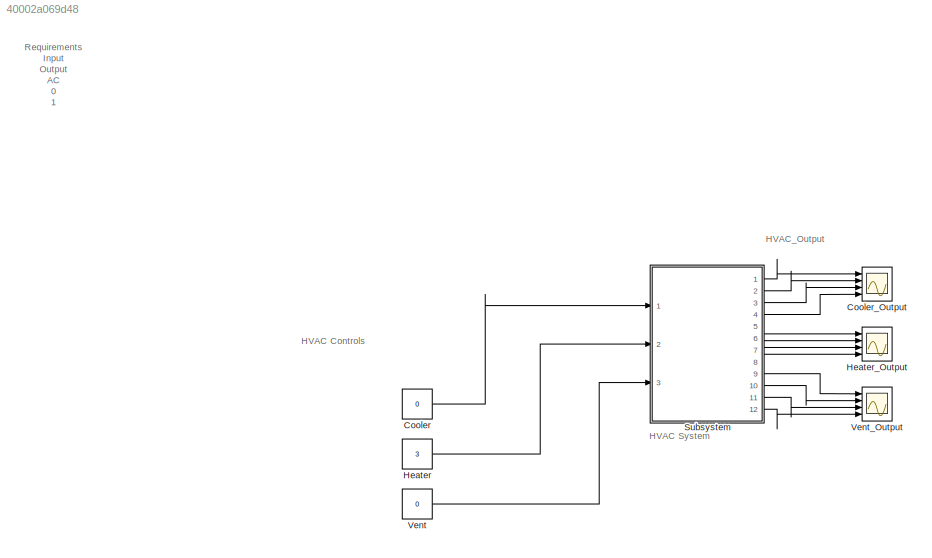
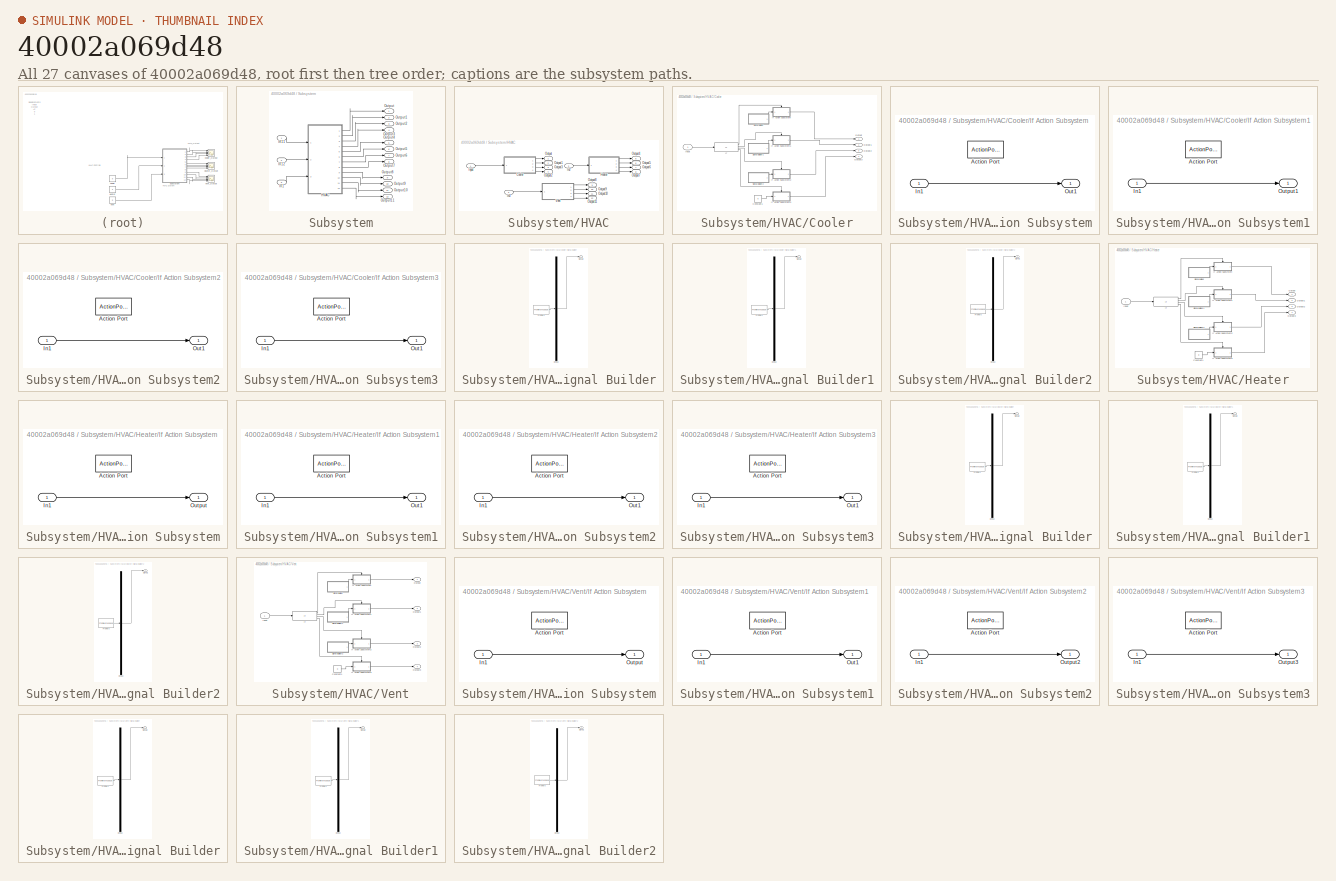
[diagram: thumbnail index - all 27 canvases of the model, root first then tree order]
MODEL slx_40002a069d48
KIND model
CONFIG AbsTol = auto
CONFIG EnableMultiTasking = off
CONFIG FixedStep = auto
CONFIG MaxStep = auto
CONFIG MinStep = auto
CONFIG RelTol = 1e-3
CONFIG SampleTimeConstraint = Unconstrained
CONFIG Solver = VariableStepAuto
CONFIG SolverName = VariableStepAuto
CONFIG StartTime = 0.0
CONFIG StopTime = 10.0
BLOCK [Constant] Cooler
  Value = 0
BLOCK [Scope] Cooler_Output
  Floating = off
  NumInputPorts = 4
  Ports = [4]
  ScopeSpecificationString = Simulink.scopes.TimeScopeBlockCfg('CurrentConfiguration', extmgr.ConfigurationSet(extmgr.Configuration('Core','General UI',true),extmgr.Configuration('Core','Source UI',true),extmgr.Configuration('Sources','WiredSimulink',true,'DataLoggingVariableName','ScopeData1'),extmgr.Configuration('Visuals','Time Domain',true,'SerializedDisplays',{struct('MinYLimReal','-1.00000','MaxYLimReal','1.00000','YLab...<+1412ch>
BLOCK [Constant] Heater
  Value = 3
BLOCK [Scope] Heater_Output
  Floating = off
  NumInputPorts = 4
  Ports = [4]
  ScopeSpecificationString = Simulink.scopes.TimeScopeBlockCfg('CurrentConfiguration', extmgr.ConfigurationSet(extmgr.Configuration('Core','General UI',true),extmgr.Configuration('Core','Source UI',true),extmgr.Configuration('Sources','WiredSimulink',true,'DataLoggingVariableName','ScopeData2'),extmgr.Configuration('Visuals','Time Domain',true,'SerializedDisplays',{struct('MinYLimReal','-0.25','MaxYLimReal','2.25','YLabelReal...<+1394ch>
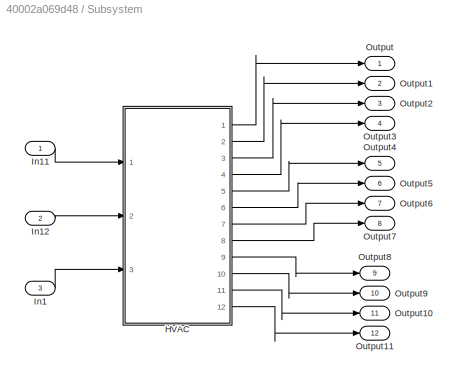
BLOCK [SubSystem] Subsystem
  Ports = [3, 12]
  RequestExecContextInheritance = off
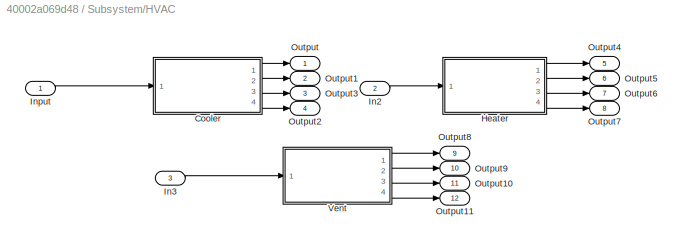
BLOCK [SubSystem] Subsystem/HVAC
  Ports = [3, 12]
  RequestExecContextInheritance = off
BLOCK [SubSystem] Subsystem/HVAC/Cooler
  Ports = [1, 4]
  RequestExecContextInheritance = off
BLOCK [Constant] Subsystem/HVAC/Cooler/Constant1
  Value = 0
BLOCK [If] Subsystem/HVAC/Cooler/If
  ElseIfExpressions = u1 == 2, u1 == 3
  IfExpression = u1 == 1
  Ports = [1, 4]
BLOCK [SubSystem] Subsystem/HVAC/Cooler/If Action Subsystem
  Ports = [1, 1, 0, 0, 0, 0, 0, 1]
  RequestExecContextInheritance = off
  TreatAsAtomicUnit = on
BLOCK [ActionPort] Subsystem/HVAC/Cooler/If Action Subsystem/Action Port
BLOCK [Inport] Subsystem/HVAC/Cooler/If Action Subsystem/In1
BLOCK [Outport] Subsystem/HVAC/Cooler/If Action Subsystem/Out1
BLOCK [SubSystem] Subsystem/HVAC/Cooler/If Action Subsystem1
  Ports = [1, 1, 0, 0, 0, 0, 0, 1]
  RequestExecContextInheritance = off
  TreatAsAtomicUnit = on
BLOCK [ActionPort] Subsystem/HVAC/Cooler/If Action Subsystem1/Action Port
BLOCK [Inport] Subsystem/HVAC/Cooler/If Action Subsystem1/In1
BLOCK [Outport] Subsystem/HVAC/Cooler/If Action Subsystem1/Output1
BLOCK [SubSystem] Subsystem/HVAC/Cooler/If Action Subsystem2
  Ports = [1, 1, 0, 0, 0, 0, 0, 1]
  RequestExecContextInheritance = off
  TreatAsAtomicUnit = on
BLOCK [ActionPort] Subsystem/HVAC/Cooler/If Action Subsystem2/Action Port
BLOCK [Inport] Subsystem/HVAC/Cooler/If Action Subsystem2/In1
BLOCK [Outport] Subsystem/HVAC/Cooler/If Action Subsystem2/Out1
BLOCK [SubSystem] Subsystem/HVAC/Cooler/If Action Subsystem3
  Ports = [1, 1, 0, 0, 0, 0, 0, 1]
  RequestExecContextInheritance = off
  TreatAsAtomicUnit = on
BLOCK [ActionPort] Subsystem/HVAC/Cooler/If Action Subsystem3/Action Port
BLOCK [Inport] Subsystem/HVAC/Cooler/If Action Subsystem3/In1
BLOCK [Outport] Subsystem/HVAC/Cooler/If Action Subsystem3/Out1
BLOCK [Inport] Subsystem/HVAC/Cooler/Input
BLOCK [Outport] Subsystem/HVAC/Cooler/Output
BLOCK [Outport] Subsystem/HVAC/Cooler/Output1
  Port = 2
BLOCK [Outport] Subsystem/HVAC/Cooler/Output2
  Port = 3
BLOCK [Outport] Subsystem/HVAC/Cooler/Output3
  Port = 4
BLOCK [SubSystem] Subsystem/HVAC/Cooler/Signal Builder
  ClipboardFcn = sigbuilder_block('clipboard');
  CloseFcn = sigbuilder_block('close');
  ContinueFcn = sigbuilder_block('continue');
  CopyFcn = sigbuilder_block('copy');
  DeleteFcn = sigbuilder_block('delete');
  LoadFcn = sigbuilder_block('load',[437.6 153 550.4 359.25 ]);
  MaskHideContents = on
  ModelCloseFcn = sigbuilder_block('modelClose');
  NameChangeFcn = sigbuilder_block('namechange');
  OpenFcn = sigbuilder_block('open',[437.6 153 550.4 359.25 ]);
  PauseFcn = sigbuilder_block('pause');
  Ports = [0, 1]
  PreSaveFcn = sigbuilder_block('preSave');
  RequestExecContextInheritance = off
  StartFcn = sigbuilder_block('start');
  StopFcn = sigbuilder_block('stop');
  Tag = STV Subsys
BLOCK [Demux] Subsystem/HVAC/Cooler/Signal Builder/Demux
  DisplayOption = none
  Outputs = 1
  Ports = [1, 1]
  Tag = STV Demux
BLOCK [FromWorkspace] Subsystem/HVAC/Cooler/Signal Builder/FromWs
  Tag = STV FromWs
  VariableName = tuvar
BLOCK [Outport] Subsystem/HVAC/Cooler/Signal Builder/Signal 2
  Tag = STV Outport
BLOCK [SubSystem] Subsystem/HVAC/Cooler/Signal Builder1
  ClipboardFcn = sigbuilder_block('clipboard');
  CloseFcn = sigbuilder_block('close');
  ContinueFcn = sigbuilder_block('continue');
  CopyFcn = sigbuilder_block('copy');
  DeleteFcn = sigbuilder_block('delete');
  LoadFcn = sigbuilder_block('load');
  MaskHideContents = on
  ModelCloseFcn = sigbuilder_block('modelClose');
  NameChangeFcn = sigbuilder_block('namechange');
  OpenFcn = sigbuilder_block('open',[437.6 153 550.4 359.25 ]);
  PauseFcn = sigbuilder_block('pause');
  Ports = [0, 1]
  PreSaveFcn = sigbuilder_block('preSave');
  RequestExecContextInheritance = off
  StartFcn = sigbuilder_block('start');
  StopFcn = sigbuilder_block('stop');
  Tag = STV Subsys
BLOCK [Demux] Subsystem/HVAC/Cooler/Signal Builder1/Demux
  DisplayOption = none
  Outputs = 1
  Ports = [1, 1]
  Tag = STV Demux
BLOCK [FromWorkspace] Subsystem/HVAC/Cooler/Signal Builder1/FromWs
  Tag = STV FromWs
  VariableName = tuvar
BLOCK [Outport] Subsystem/HVAC/Cooler/Signal Builder1/Signal 2
  Tag = STV Outport
BLOCK [SubSystem] Subsystem/HVAC/Cooler/Signal Builder2
  ClipboardFcn = sigbuilder_block('clipboard');
  CloseFcn = sigbuilder_block('close');
  ContinueFcn = sigbuilder_block('continue');
  CopyFcn = sigbuilder_block('copy');
  DeleteFcn = sigbuilder_block('delete');
  LoadFcn = sigbuilder_block('load');
  MaskHideContents = on
  ModelCloseFcn = sigbuilder_block('modelClose');
  NameChangeFcn = sigbuilder_block('namechange');
  OpenFcn = sigbuilder_block('open',[437.6 153 550.4 359.25 ]);
  PauseFcn = sigbuilder_block('pause');
  Ports = [0, 1]
  PreSaveFcn = sigbuilder_block('preSave');
  RequestExecContextInheritance = off
  StartFcn = sigbuilder_block('start');
  StopFcn = sigbuilder_block('stop');
  Tag = STV Subsys
BLOCK [Demux] Subsystem/HVAC/Cooler/Signal Builder2/Demux
  DisplayOption = none
  Outputs = 1
  Ports = [1, 1]
  Tag = STV Demux
BLOCK [FromWorkspace] Subsystem/HVAC/Cooler/Signal Builder2/FromWs
  Tag = STV FromWs
  VariableName = tuvar
BLOCK [Outport] Subsystem/HVAC/Cooler/Signal Builder2/Signal 1
  Tag = STV Outport
BLOCK [SubSystem] Subsystem/HVAC/Heater
  Ports = [1, 4]
  RequestExecContextInheritance = off
BLOCK [Constant] Subsystem/HVAC/Heater/Constant1
  Value = 0
BLOCK [If] Subsystem/HVAC/Heater/If
  ElseIfExpressions = u1 == 2, u1 == 3
  IfExpression = u1 == 1
  Ports = [1, 4]
BLOCK [SubSystem] Subsystem/HVAC/Heater/If Action Subsystem
  Ports = [1, 1, 0, 0, 0, 0, 0, 1]
  RequestExecContextInheritance = off
  TreatAsAtomicUnit = on
BLOCK [ActionPort] Subsystem/HVAC/Heater/If Action Subsystem/Action Port
BLOCK [Inport] Subsystem/HVAC/Heater/If Action Subsystem/In1
BLOCK [Outport] Subsystem/HVAC/Heater/If Action Subsystem/Output
BLOCK [SubSystem] Subsystem/HVAC/Heater/If Action Subsystem1
  Ports = [1, 1, 0, 0, 0, 0, 0, 1]
  RequestExecContextInheritance = off
  TreatAsAtomicUnit = on
BLOCK [ActionPort] Subsystem/HVAC/Heater/If Action Subsystem1/Action Port
BLOCK [Inport] Subsystem/HVAC/Heater/If Action Subsystem1/In1
BLOCK [Outport] Subsystem/HVAC/Heater/If Action Subsystem1/Out1
BLOCK [SubSystem] Subsystem/HVAC/Heater/If Action Subsystem2
  Ports = [1, 1, 0, 0, 0, 0, 0, 1]
  RequestExecContextInheritance = off
  TreatAsAtomicUnit = on
BLOCK [ActionPort] Subsystem/HVAC/Heater/If Action Subsystem2/Action Port
BLOCK [Inport] Subsystem/HVAC/Heater/If Action Subsystem2/In1
BLOCK [Outport] Subsystem/HVAC/Heater/If Action Subsystem2/Out1
BLOCK [SubSystem] Subsystem/HVAC/Heater/If Action Subsystem3
  Ports = [1, 1, 0, 0, 0, 0, 0, 1]
  RequestExecContextInheritance = off
  TreatAsAtomicUnit = on
BLOCK [ActionPort] Subsystem/HVAC/Heater/If Action Subsystem3/Action Port
BLOCK [Inport] Subsystem/HVAC/Heater/If Action Subsystem3/In1
BLOCK [Outport] Subsystem/HVAC/Heater/If Action Subsystem3/Out1
BLOCK [Inport] Subsystem/HVAC/Heater/Input
BLOCK [Outport] Subsystem/HVAC/Heater/Output
BLOCK [Outport] Subsystem/HVAC/Heater/Output1
  Port = 2
BLOCK [Outport] Subsystem/HVAC/Heater/Output2
  Port = 3
BLOCK [Outport] Subsystem/HVAC/Heater/Output3
  Port = 4
BLOCK [SubSystem] Subsystem/HVAC/Heater/Signal Builder
  ClipboardFcn = sigbuilder_block('clipboard');
  CloseFcn = sigbuilder_block('close');
  ContinueFcn = sigbuilder_block('continue');
  CopyFcn = sigbuilder_block('copy');
  DeleteFcn = sigbuilder_block('delete');
  LoadFcn = sigbuilder_block('load');
  MaskHideContents = on
  ModelCloseFcn = sigbuilder_block('modelClose');
  NameChangeFcn = sigbuilder_block('namechange');
  OpenFcn = sigbuilder_block('open',[437.6 153 550.4 359.25 ]);
  PauseFcn = sigbuilder_block('pause');
  Ports = [0, 1]
  PreSaveFcn = sigbuilder_block('preSave');
  RequestExecContextInheritance = off
  StartFcn = sigbuilder_block('start');
  StopFcn = sigbuilder_block('stop');
  Tag = STV Subsys
BLOCK [Demux] Subsystem/HVAC/Heater/Signal Builder/Demux
  DisplayOption = none
  Outputs = 1
  Ports = [1, 1]
  Tag = STV Demux
BLOCK [FromWorkspace] Subsystem/HVAC/Heater/Signal Builder/FromWs
  Tag = STV FromWs
  VariableName = tuvar
BLOCK [Outport] Subsystem/HVAC/Heater/Signal Builder/Signal 2
  Tag = STV Outport
BLOCK [SubSystem] Subsystem/HVAC/Heater/Signal Builder1
  ClipboardFcn = sigbuilder_block('clipboard');
  CloseFcn = sigbuilder_block('close');
  ContinueFcn = sigbuilder_block('continue');
  CopyFcn = sigbuilder_block('copy');
  DeleteFcn = sigbuilder_block('delete');
  LoadFcn = sigbuilder_block('load');
  MaskHideContents = on
  ModelCloseFcn = sigbuilder_block('modelClose');
  NameChangeFcn = sigbuilder_block('namechange');
  OpenFcn = sigbuilder_block('open',[437.6 153 550.4 359.25 ]);
  PauseFcn = sigbuilder_block('pause');
  Ports = [0, 1]
  PreSaveFcn = sigbuilder_block('preSave');
  RequestExecContextInheritance = off
  StartFcn = sigbuilder_block('start');
  StopFcn = sigbuilder_block('stop');
  Tag = STV Subsys
BLOCK [Demux] Subsystem/HVAC/Heater/Signal Builder1/Demux
  DisplayOption = none
  Outputs = 1
  Ports = [1, 1]
  Tag = STV Demux
BLOCK [FromWorkspace] Subsystem/HVAC/Heater/Signal Builder1/FromWs
  Tag = STV FromWs
  VariableName = tuvar
BLOCK [Outport] Subsystem/HVAC/Heater/Signal Builder1/Signal 2
  Tag = STV Outport
BLOCK [SubSystem] Subsystem/HVAC/Heater/Signal Builder2
  ClipboardFcn = sigbuilder_block('clipboard');
  CloseFcn = sigbuilder_block('close');
  ContinueFcn = sigbuilder_block('continue');
  CopyFcn = sigbuilder_block('copy');
  DeleteFcn = sigbuilder_block('delete');
  LoadFcn = sigbuilder_block('load');
  MaskHideContents = on
  ModelCloseFcn = sigbuilder_block('modelClose');
  NameChangeFcn = sigbuilder_block('namechange');
  OpenFcn = sigbuilder_block('open',[437.6 153 550.4 359.25 ]);
  PauseFcn = sigbuilder_block('pause');
  Ports = [0, 1]
  PreSaveFcn = sigbuilder_block('preSave');
  RequestExecContextInheritance = off
  StartFcn = sigbuilder_block('start');
  StopFcn = sigbuilder_block('stop');
  Tag = STV Subsys
BLOCK [Demux] Subsystem/HVAC/Heater/Signal Builder2/Demux
  DisplayOption = none
  Outputs = 1
  Ports = [1, 1]
  Tag = STV Demux
BLOCK [FromWorkspace] Subsystem/HVAC/Heater/Signal Builder2/FromWs
  Tag = STV FromWs
  VariableName = tuvar
BLOCK [Outport] Subsystem/HVAC/Heater/Signal Builder2/Signal 1
  Tag = STV Outport
BLOCK [Inport] Subsystem/HVAC/In2
  Port = 2
BLOCK [Inport] Subsystem/HVAC/In3
  Port = 3
BLOCK [Inport] Subsystem/HVAC/Input
BLOCK [Outport] Subsystem/HVAC/Output
BLOCK [Outport] Subsystem/HVAC/Output1
  Port = 2
BLOCK [Outport] Subsystem/HVAC/Output10
  Port = 11
BLOCK [Outport] Subsystem/HVAC/Output11
  Port = 12
BLOCK [Outport] Subsystem/HVAC/Output2
  Port = 4
BLOCK [Outport] Subsystem/HVAC/Output3
  Port = 3
BLOCK [Outport] Subsystem/HVAC/Output4
  Port = 5
BLOCK [Outport] Subsystem/HVAC/Output5
  Port = 6
BLOCK [Outport] Subsystem/HVAC/Output6
  Port = 7
BLOCK [Outport] Subsystem/HVAC/Output7
  Port = 8
BLOCK [Outport] Subsystem/HVAC/Output8
  Port = 9
BLOCK [Outport] Subsystem/HVAC/Output9
  Port = 10
BLOCK [SubSystem] Subsystem/HVAC/Vent
  Ports = [1, 4]
  RequestExecContextInheritance = off
BLOCK [Constant] Subsystem/HVAC/Vent/Constant1
  Value = 0
BLOCK [If] Subsystem/HVAC/Vent/If
  ElseIfExpressions = u1 == 2, u1 == 3
  IfExpression = u1 == 1
  Ports = [1, 4]
BLOCK [SubSystem] Subsystem/HVAC/Vent/If Action Subsystem
  Ports = [1, 1, 0, 0, 0, 0, 0, 1]
  RequestExecContextInheritance = off
  TreatAsAtomicUnit = on
BLOCK [ActionPort] Subsystem/HVAC/Vent/If Action Subsystem/Action Port
BLOCK [Inport] Subsystem/HVAC/Vent/If Action Subsystem/In1
BLOCK [Outport] Subsystem/HVAC/Vent/If Action Subsystem/Output
BLOCK [SubSystem] Subsystem/HVAC/Vent/If Action Subsystem1
  Ports = [1, 1, 0, 0, 0, 0, 0, 1]
  RequestExecContextInheritance = off
  TreatAsAtomicUnit = on
BLOCK [ActionPort] Subsystem/HVAC/Vent/If Action Subsystem1/Action Port
BLOCK [Inport] Subsystem/HVAC/Vent/If Action Subsystem1/In1
BLOCK [Outport] Subsystem/HVAC/Vent/If Action Subsystem1/Out1
BLOCK [SubSystem] Subsystem/HVAC/Vent/If Action Subsystem2
  Ports = [1, 1, 0, 0, 0, 0, 0, 1]
  RequestExecContextInheritance = off
  TreatAsAtomicUnit = on
BLOCK [ActionPort] Subsystem/HVAC/Vent/If Action Subsystem2/Action Port
BLOCK [Inport] Subsystem/HVAC/Vent/If Action Subsystem2/In1
BLOCK [Outport] Subsystem/HVAC/Vent/If Action Subsystem2/Output2
BLOCK [SubSystem] Subsystem/HVAC/Vent/If Action Subsystem3
  Ports = [1, 1, 0, 0, 0, 0, 0, 1]
  RequestExecContextInheritance = off
  TreatAsAtomicUnit = on
BLOCK [ActionPort] Subsystem/HVAC/Vent/If Action Subsystem3/Action Port
BLOCK [Inport] Subsystem/HVAC/Vent/If Action Subsystem3/In1
BLOCK [Outport] Subsystem/HVAC/Vent/If Action Subsystem3/Output3
BLOCK [Inport] Subsystem/HVAC/Vent/Input
BLOCK [Outport] Subsystem/HVAC/Vent/Output
BLOCK [Outport] Subsystem/HVAC/Vent/Output1
  Port = 2
BLOCK [Outport] Subsystem/HVAC/Vent/Output2
  Port = 3
BLOCK [Outport] Subsystem/HVAC/Vent/Output3
  Port = 4
BLOCK [SubSystem] Subsystem/HVAC/Vent/Signal Builder
  ClipboardFcn = sigbuilder_block('clipboard');
  CloseFcn = sigbuilder_block('close');
  ContinueFcn = sigbuilder_block('continue');
  CopyFcn = sigbuilder_block('copy');
  DeleteFcn = sigbuilder_block('delete');
  LoadFcn = sigbuilder_block('load');
  MaskHideContents = on
  ModelCloseFcn = sigbuilder_block('modelClose');
  NameChangeFcn = sigbuilder_block('namechange');
  OpenFcn = sigbuilder_block('open',[437.6 153 550.4 359.25 ]);
  PauseFcn = sigbuilder_block('pause');
  Ports = [0, 1]
  PreSaveFcn = sigbuilder_block('preSave');
  RequestExecContextInheritance = off
  StartFcn = sigbuilder_block('start');
  StopFcn = sigbuilder_block('stop');
  Tag = STV Subsys
BLOCK [Demux] Subsystem/HVAC/Vent/Signal Builder/Demux
  DisplayOption = none
  Outputs = 1
  Ports = [1, 1]
  Tag = STV Demux
BLOCK [FromWorkspace] Subsystem/HVAC/Vent/Signal Builder/FromWs
  Tag = STV FromWs
  VariableName = tuvar
BLOCK [Outport] Subsystem/HVAC/Vent/Signal Builder/Signal 2
  Tag = STV Outport
BLOCK [SubSystem] Subsystem/HVAC/Vent/Signal Builder1
  ClipboardFcn = sigbuilder_block('clipboard');
  CloseFcn = sigbuilder_block('close');
  ContinueFcn = sigbuilder_block('continue');
  CopyFcn = sigbuilder_block('copy');
  DeleteFcn = sigbuilder_block('delete');
  LoadFcn = sigbuilder_block('load');
  MaskHideContents = on
  ModelCloseFcn = sigbuilder_block('modelClose');
  NameChangeFcn = sigbuilder_block('namechange');
  OpenFcn = sigbuilder_block('open',[437.6 153 550.4 359.25 ]);
  PauseFcn = sigbuilder_block('pause');
  Ports = [0, 1]
  PreSaveFcn = sigbuilder_block('preSave');
  RequestExecContextInheritance = off
  StartFcn = sigbuilder_block('start');
  StopFcn = sigbuilder_block('stop');
  Tag = STV Subsys
BLOCK [Demux] Subsystem/HVAC/Vent/Signal Builder1/Demux
  DisplayOption = none
  Outputs = 1
  Ports = [1, 1]
  Tag = STV Demux
BLOCK [FromWorkspace] Subsystem/HVAC/Vent/Signal Builder1/FromWs
  Tag = STV FromWs
  VariableName = tuvar
BLOCK [Outport] Subsystem/HVAC/Vent/Signal Builder1/Signal 2
  Tag = STV Outport
BLOCK [SubSystem] Subsystem/HVAC/Vent/Signal Builder2
  ClipboardFcn = sigbuilder_block('clipboard');
  CloseFcn = sigbuilder_block('close');
  ContinueFcn = sigbuilder_block('continue');
  CopyFcn = sigbuilder_block('copy');
  DeleteFcn = sigbuilder_block('delete');
  LoadFcn = sigbuilder_block('load');
  MaskHideContents = on
  ModelCloseFcn = sigbuilder_block('modelClose');
  NameChangeFcn = sigbuilder_block('namechange');
  OpenFcn = sigbuilder_block('open',[437.6 153 550.4 359.25 ]);
  PauseFcn = sigbuilder_block('pause');
  Ports = [0, 1]
  PreSaveFcn = sigbuilder_block('preSave');
  RequestExecContextInheritance = off
  StartFcn = sigbuilder_block('start');
  StopFcn = sigbuilder_block('stop');
  Tag = STV Subsys
BLOCK [Demux] Subsystem/HVAC/Vent/Signal Builder2/Demux
  DisplayOption = none
  Outputs = 1
  Ports = [1, 1]
  Tag = STV Demux
BLOCK [FromWorkspace] Subsystem/HVAC/Vent/Signal Builder2/FromWs
  Tag = STV FromWs
  VariableName = tuvar
BLOCK [Outport] Subsystem/HVAC/Vent/Signal Builder2/Signal 1
  Tag = STV Outport
BLOCK [Inport] Subsystem/In1
  Port = 3
BLOCK [Inport] Subsystem/In11
BLOCK [Inport] Subsystem/In12
  Port = 2
BLOCK [Outport] Subsystem/Output
BLOCK [Outport] Subsystem/Output1
  Port = 2
BLOCK [Outport] Subsystem/Output10
  Port = 11
BLOCK [Outport] Subsystem/Output11
  Port = 12
BLOCK [Outport] Subsystem/Output2
  Port = 3
BLOCK [Outport] Subsystem/Output3
  Port = 4
BLOCK [Outport] Subsystem/Output4
  Port = 5
BLOCK [Outport] Subsystem/Output5
  Port = 6
BLOCK [Outport] Subsystem/Output6
  Port = 7
BLOCK [Outport] Subsystem/Output7
  Port = 8
BLOCK [Outport] Subsystem/Output8
  Port = 9
BLOCK [Outport] Subsystem/Output9
  Port = 10
BLOCK [Constant] Vent
  Value = 0
BLOCK [Scope] Vent_Output
  Floating = off
  NumInputPorts = 4
  Ports = [4]
  ScopeSpecificationString = Simulink.scopes.TimeScopeBlockCfg('CurrentConfiguration', extmgr.ConfigurationSet(extmgr.Configuration('Core','General UI',true),extmgr.Configuration('Core','Source UI',true),extmgr.Configuration('Sources','WiredSimulink',true),extmgr.Configuration('Visuals','Time Domain',true),extmgr.Configuration('Tools','Plot Navigation',true),extmgr.Configuration('Tools','Measurements',true)),'Version','2020b'...<+1ch>
ANNOTATION (root): Requirements Input Output AC 0 1 2 3 other than 0,1,2 & 3 Off Low Medium High Invalid Heater 0 1 2 3 other than 0,1,2 & 3 Off Low Medium High Invalid Vent 0 1 2 3 other than 0,1,2 & 3 Off Low Medium High Invalid
ANNOTATION (root): HVAC Controls
ANNOTATION (root): HVAC System
ANNOTATION (root): HVAC_Output
LINE Cooler:1 -> Subsystem:1
LINE Heater:1 -> Subsystem:2
LINE Subsystem/HVAC/Cooler/Constant1:1 -> Subsystem/HVAC/Cooler/If Action Subsystem3:1
LINE Subsystem/HVAC/Cooler/If Action Subsystem/In1:1 -> Subsystem/HVAC/Cooler/If Action Subsystem/Out1:1
LINE Subsystem/HVAC/Cooler/If Action Subsystem1/In1:1 -> Subsystem/HVAC/Cooler/If Action Subsystem1/Output1:1
LINE Subsystem/HVAC/Cooler/If Action Subsystem1:1 -> Subsystem/HVAC/Cooler/Output1:1
LINE Subsystem/HVAC/Cooler/If Action Subsystem2/In1:1 -> Subsystem/HVAC/Cooler/If Action Subsystem2/Out1:1
LINE Subsystem/HVAC/Cooler/If Action Subsystem2:1 -> Subsystem/HVAC/Cooler/Output2:1
LINE Subsystem/HVAC/Cooler/If Action Subsystem3/In1:1 -> Subsystem/HVAC/Cooler/If Action Subsystem3/Out1:1
LINE Subsystem/HVAC/Cooler/If Action Subsystem3:1 -> Subsystem/HVAC/Cooler/Output3:1
LINE Subsystem/HVAC/Cooler/If Action Subsystem:1 -> Subsystem/HVAC/Cooler/Output:1
LINE Subsystem/HVAC/Cooler/If:1 -> Subsystem/HVAC/Cooler/If Action Subsystem:ifaction
LINE Subsystem/HVAC/Cooler/If:2 -> Subsystem/HVAC/Cooler/If Action Subsystem1:ifaction
LINE Subsystem/HVAC/Cooler/If:3 -> Subsystem/HVAC/Cooler/If Action Subsystem2:ifaction
LINE Subsystem/HVAC/Cooler/If:4 -> Subsystem/HVAC/Cooler/If Action Subsystem3:ifaction
LINE Subsystem/HVAC/Cooler/Input:1 -> Subsystem/HVAC/Cooler/If:1
LINE Subsystem/HVAC/Cooler/Signal Builder1:1 -> Subsystem/HVAC/Cooler/If Action Subsystem1:1
LINE Subsystem/HVAC/Cooler/Signal Builder2:1 -> Subsystem/HVAC/Cooler/If Action Subsystem2:1
LINE Subsystem/HVAC/Cooler/Signal Builder:1 -> Subsystem/HVAC/Cooler/If Action Subsystem:1
LINE Subsystem/HVAC/Cooler:1 -> Subsystem/HVAC/Output:1
LINE Subsystem/HVAC/Cooler:2 -> Subsystem/HVAC/Output1:1
LINE Subsystem/HVAC/Cooler:3 -> Subsystem/HVAC/Output3:1
LINE Subsystem/HVAC/Cooler:4 -> Subsystem/HVAC/Output2:1
LINE Subsystem/HVAC/Heater/Constant1:1 -> Subsystem/HVAC/Heater/If Action Subsystem3:1
LINE Subsystem/HVAC/Heater/If Action Subsystem/In1:1 -> Subsystem/HVAC/Heater/If Action Subsystem/Output:1
LINE Subsystem/HVAC/Heater/If Action Subsystem1/In1:1 -> Subsystem/HVAC/Heater/If Action Subsystem1/Out1:1
LINE Subsystem/HVAC/Heater/If Action Subsystem1:1 -> Subsystem/HVAC/Heater/Output1:1
LINE Subsystem/HVAC/Heater/If Action Subsystem2/In1:1 -> Subsystem/HVAC/Heater/If Action Subsystem2/Out1:1
LINE Subsystem/HVAC/Heater/If Action Subsystem2:1 -> Subsystem/HVAC/Heater/Output2:1
LINE Subsystem/HVAC/Heater/If Action Subsystem3/In1:1 -> Subsystem/HVAC/Heater/If Action Subsystem3/Out1:1
LINE Subsystem/HVAC/Heater/If Action Subsystem3:1 -> Subsystem/HVAC/Heater/Output3:1
LINE Subsystem/HVAC/Heater/If Action Subsystem:1 -> Subsystem/HVAC/Heater/Output:1
LINE Subsystem/HVAC/Heater/If:1 -> Subsystem/HVAC/Heater/If Action Subsystem:ifaction
LINE Subsystem/HVAC/Heater/If:2 -> Subsystem/HVAC/Heater/If Action Subsystem1:ifaction
LINE Subsystem/HVAC/Heater/If:3 -> Subsystem/HVAC/Heater/If Action Subsystem2:ifaction
LINE Subsystem/HVAC/Heater/If:4 -> Subsystem/HVAC/Heater/If Action Subsystem3:ifaction
LINE Subsystem/HVAC/Heater/Input:1 -> Subsystem/HVAC/Heater/If:1
LINE Subsystem/HVAC/Heater/Signal Builder1:1 -> Subsystem/HVAC/Heater/If Action Subsystem1:1
LINE Subsystem/HVAC/Heater/Signal Builder2:1 -> Subsystem/HVAC/Heater/If Action Subsystem2:1
LINE Subsystem/HVAC/Heater/Signal Builder:1 -> Subsystem/HVAC/Heater/If Action Subsystem:1
LINE Subsystem/HVAC/Heater:1 -> Subsystem/HVAC/Output4:1
LINE Subsystem/HVAC/Heater:2 -> Subsystem/HVAC/Output5:1
LINE Subsystem/HVAC/Heater:3 -> Subsystem/HVAC/Output6:1
LINE Subsystem/HVAC/Heater:4 -> Subsystem/HVAC/Output7:1
LINE Subsystem/HVAC/In2:1 -> Subsystem/HVAC/Heater:1
LINE Subsystem/HVAC/In3:1 -> Subsystem/HVAC/Vent:1
LINE Subsystem/HVAC/Input:1 -> Subsystem/HVAC/Cooler:1
LINE Subsystem/HVAC/Vent/Constant1:1 -> Subsystem/HVAC/Vent/If Action Subsystem3:1
LINE Subsystem/HVAC/Vent/If Action Subsystem/In1:1 -> Subsystem/HVAC/Vent/If Action Subsystem/Output:1
LINE Subsystem/HVAC/Vent/If Action Subsystem1/In1:1 -> Subsystem/HVAC/Vent/If Action Subsystem1/Out1:1
LINE Subsystem/HVAC/Vent/If Action Subsystem1:1 -> Subsystem/HVAC/Vent/Output1:1
LINE Subsystem/HVAC/Vent/If Action Subsystem2/In1:1 -> Subsystem/HVAC/Vent/If Action Subsystem2/Output2:1
LINE Subsystem/HVAC/Vent/If Action Subsystem2:1 -> Subsystem/HVAC/Vent/Output2:1
LINE Subsystem/HVAC/Vent/If Action Subsystem3/In1:1 -> Subsystem/HVAC/Vent/If Action Subsystem3/Output3:1
LINE Subsystem/HVAC/Vent/If Action Subsystem3:1 -> Subsystem/HVAC/Vent/Output3:1
LINE Subsystem/HVAC/Vent/If Action Subsystem:1 -> Subsystem/HVAC/Vent/Output:1
LINE Subsystem/HVAC/Vent/If:1 -> Subsystem/HVAC/Vent/If Action Subsystem:ifaction
LINE Subsystem/HVAC/Vent/If:2 -> Subsystem/HVAC/Vent/If Action Subsystem1:ifaction
LINE Subsystem/HVAC/Vent/If:3 -> Subsystem/HVAC/Vent/If Action Subsystem2:ifaction
LINE Subsystem/HVAC/Vent/If:4 -> Subsystem/HVAC/Vent/If Action Subsystem3:ifaction
LINE Subsystem/HVAC/Vent/Input:1 -> Subsystem/HVAC/Vent/If:1
LINE Subsystem/HVAC/Vent/Signal Builder1:1 -> Subsystem/HVAC/Vent/If Action Subsystem1:1
LINE Subsystem/HVAC/Vent/Signal Builder2:1 -> Subsystem/HVAC/Vent/If Action Subsystem2:1
LINE Subsystem/HVAC/Vent/Signal Builder:1 -> Subsystem/HVAC/Vent/If Action Subsystem:1
LINE Subsystem/HVAC/Vent:1 -> Subsystem/HVAC/Output8:1
LINE Subsystem/HVAC/Vent:2 -> Subsystem/HVAC/Output9:1
LINE Subsystem/HVAC/Vent:3 -> Subsystem/HVAC/Output10:1
LINE Subsystem/HVAC/Vent:4 -> Subsystem/HVAC/Output11:1
LINE Subsystem/HVAC:1 -> Subsystem/Output:1
LINE Subsystem/HVAC:10 -> Subsystem/Output9:1
LINE Subsystem/HVAC:11 -> Subsystem/Output10:1
LINE Subsystem/HVAC:12 -> Subsystem/Output11:1
LINE Subsystem/HVAC:2 -> Subsystem/Output1:1
LINE Subsystem/HVAC:3 -> Subsystem/Output2:1
LINE Subsystem/HVAC:4 -> Subsystem/Output3:1
LINE Subsystem/HVAC:5 -> Subsystem/Output4:1
LINE Subsystem/HVAC:6 -> Subsystem/Output5:1
LINE Subsystem/HVAC:7 -> Subsystem/Output6:1
LINE Subsystem/HVAC:8 -> Subsystem/Output7:1
LINE Subsystem/HVAC:9 -> Subsystem/Output8:1
LINE Subsystem/In11:1 -> Subsystem/HVAC:1
LINE Subsystem/In12:1 -> Subsystem/HVAC:2
LINE Subsystem/In1:1 -> Subsystem/HVAC:3
LINE Subsystem:1 -> Cooler_Output:1
LINE Subsystem:10 -> Vent_Output:2
LINE Subsystem:11 -> Vent_Output:3
LINE Subsystem:12 -> Vent_Output:4
LINE Subsystem:2 -> Cooler_Output:2
LINE Subsystem:3 -> Cooler_Output:3
LINE Subsystem:4 -> Cooler_Output:4
LINE Subsystem:5 -> Heater_Output:1
LINE Subsystem:6 -> Heater_Output:2
LINE Subsystem:7 -> Heater_Output:3
LINE Subsystem:8 -> Heater_Output:4
LINE Subsystem:9 -> Vent_Output:1
LINE Vent:1 -> Subsystem:3
